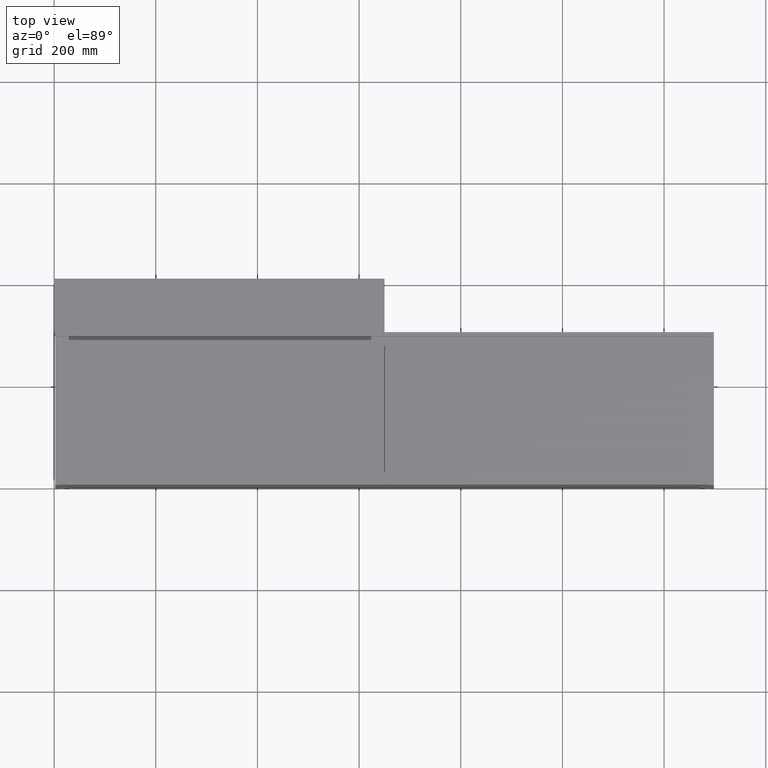
[diagram: clean part render]
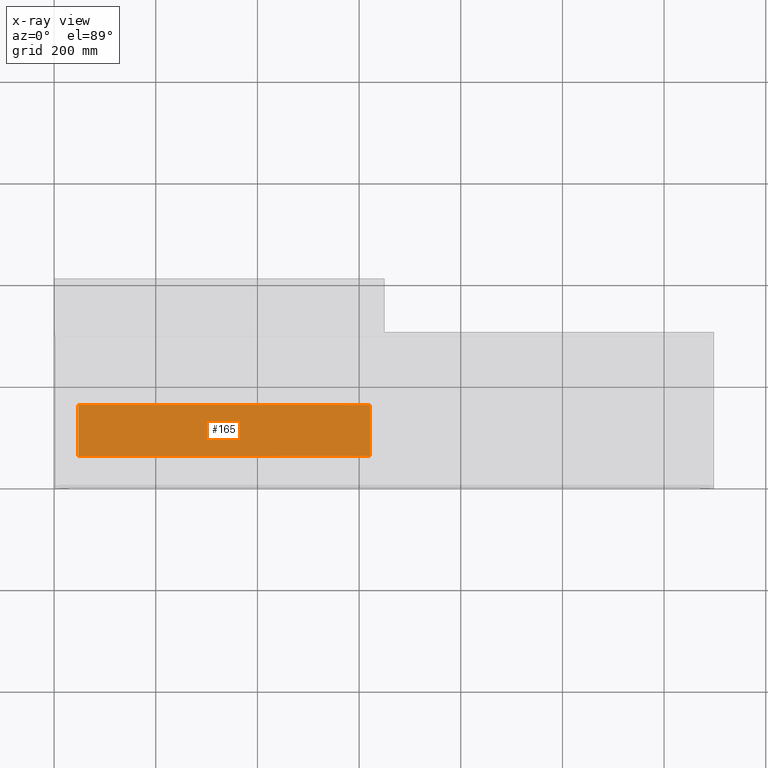
[diagram: x-ray — body ghosted, one internal face saturated and labeled with its STEP entity id]
A machine part, top view, then the same camera in x-ray: the body is ghosted and one INTERNAL B-rep face — a face not visible from any outside direction — is saturated and labeled: STEP entity #165.
In plain terms, the highlighted planar face has unit normal (0, 0, -1).
Its self-contained STEP definition (entity closure, byte-faithful):
#165 = ADVANCED_FACE ( 'NONE', ( #10134 ), #15087, .F. ) ;
#201 = CARTESIAN_POINT ( 'NONE',  ( 621.5000000000003411, 61.49999999999992895, -338.0000000000000000 ) ) ;
#662 = CARTESIAN_POINT ( 'NONE',  ( 48.00000000000006395, 61.50000000000000000, -338.0000000000000000 ) ) ;
#880 = CARTESIAN_POINT ( 'NONE',  ( 621.5000000000003411, 162.4999999999999147, -338.0000000000000000 ) ) ;
#1174 = CARTESIAN_POINT ( 'NONE',  ( 48.00000000000007816, 162.5000000000000000, -338.0000000000000000 ) ) ;
#1329 = CARTESIAN_POINT ( 'NONE',  ( 621.5000000000003411, 162.4999999999999147, -338.0000000000000000 ) ) ;
#1692 = LINE ( 'NONE', #10456, #4050 ) ;
#2195 = AXIS2_PLACEMENT_3D ( 'NONE', #3900, #8909, #13858 ) ;
#3418 = DIRECTION ( 'NONE',  ( -1.203624267806977720E-16, -1.000000000000000000, -0.0000000000000000000 ) ) ;
#3900 = CARTESIAN_POINT ( 'NONE',  ( 48.00000000000007816, 162.5000000000000000, -338.0000000000000000 ) ) ;
#4049 = EDGE_CURVE ( 'NONE', #13181, #11125, #12527, .T. ) ;
#4050 = VECTOR ( 'NONE', #15411, 1000.000000000000000 ) ;
#4097 = ORIENTED_EDGE ( 'NONE', *, *, #14317, .T. ) ;
#4952 = VECTOR ( 'NONE', #6328, 1000.000000000000000 ) ;
#5233 = EDGE_LOOP ( 'NONE', ( #4097, #10390, #13679, #8956 ) ) ;
#6168 = DIRECTION ( 'NONE',  ( 1.000000000000000000, -1.209920471474668582E-16, 0.0000000000000000000 ) ) ;
#6328 = DIRECTION ( 'NONE',  ( -1.203624267806977720E-16, -1.000000000000000000, -0.0000000000000000000 ) ) ;
#7153 = VECTOR ( 'NONE', #3418, 1000.000000000000000 ) ;
#7778 = VERTEX_POINT ( 'NONE', #662 ) ;
#8170 = EDGE_CURVE ( 'NONE', #8765, #13181, #12370, .T. ) ;
#8765 = VERTEX_POINT ( 'NONE', #12991 ) ;
#8909 = DIRECTION ( 'NONE',  ( 0.0000000000000000000, 0.0000000000000000000, -1.000000000000000000 ) ) ;
#8956 = ORIENTED_EDGE ( 'NONE', *, *, #15861, .T. ) ;
#9659 = LINE ( 'NONE', #14600, #7153 ) ;
#9704 = VECTOR ( 'NONE', #6168, 1000.000000000000000 ) ;
#10134 = FACE_OUTER_BOUND ( 'NONE', #5233, .T. ) ;
#10390 = ORIENTED_EDGE ( 'NONE', *, *, #4049, .F. ) ;
#10456 = CARTESIAN_POINT ( 'NONE',  ( 48.00000000000006395, 61.50000000000000000, -338.0000000000000000 ) ) ;
#11125 = VERTEX_POINT ( 'NONE', #201 ) ;
#12370 = LINE ( 'NONE', #1174, #9704 ) ;
#12527 = LINE ( 'NONE', #1329, #4952 ) ;
#12991 = CARTESIAN_POINT ( 'NONE',  ( 48.00000000000007816, 162.5000000000000000, -338.0000000000000000 ) ) ;
#13181 = VERTEX_POINT ( 'NONE', #880 ) ;
#13679 = ORIENTED_EDGE ( 'NONE', *, *, #8170, .F. ) ;
#13858 = DIRECTION ( 'NONE',  ( -1.000000000000000000, 0.0000000000000000000, -0.0000000000000000000 ) ) ;
#14317 = EDGE_CURVE ( 'NONE', #7778, #11125, #1692, .T. ) ;
#14600 = CARTESIAN_POINT ( 'NONE',  ( 48.00000000000007816, 162.5000000000000000, -338.0000000000000000 ) ) ;
#15087 = PLANE ( 'NONE',  #2195 ) ;
#15411 = DIRECTION ( 'NONE',  ( 1.000000000000000000, -1.209920471474668582E-16, 0.0000000000000000000 ) ) ;
#15861 = EDGE_CURVE ( 'NONE', #8765, #7778, #9659, .T. ) ;